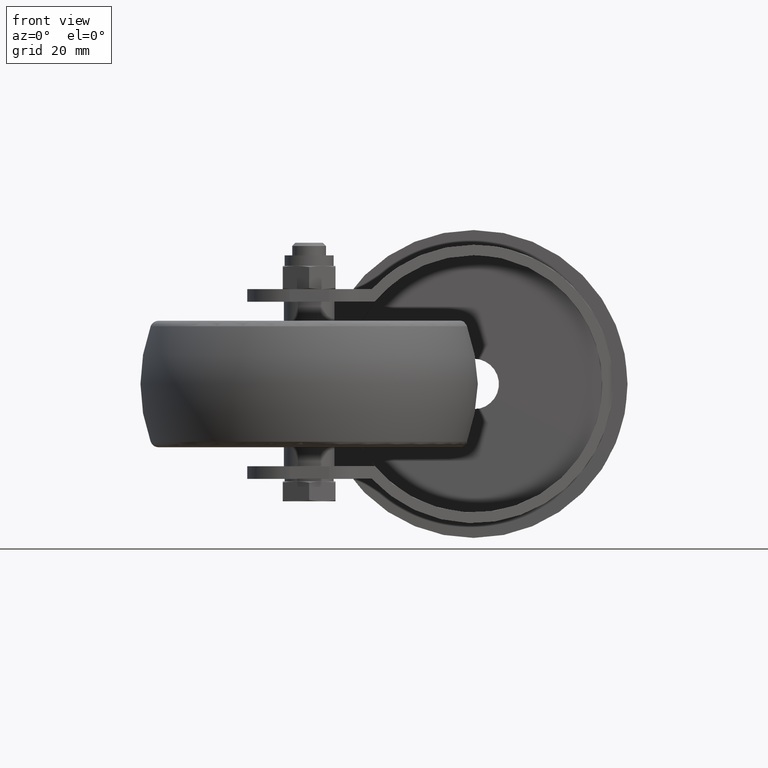
[diagram: clean part render]
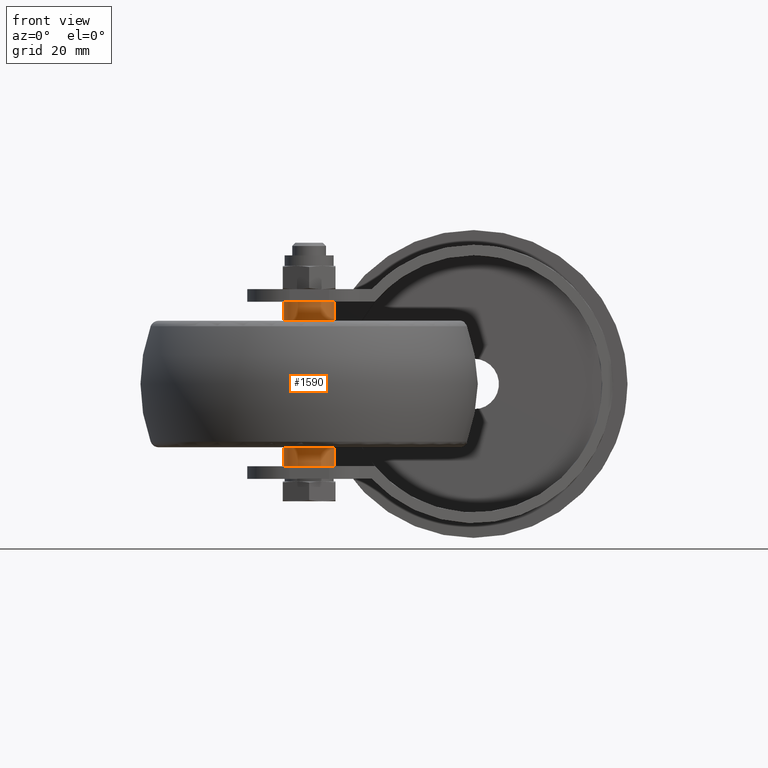
[diagram: same view with one face highlighted and labeled with its STEP entity id]
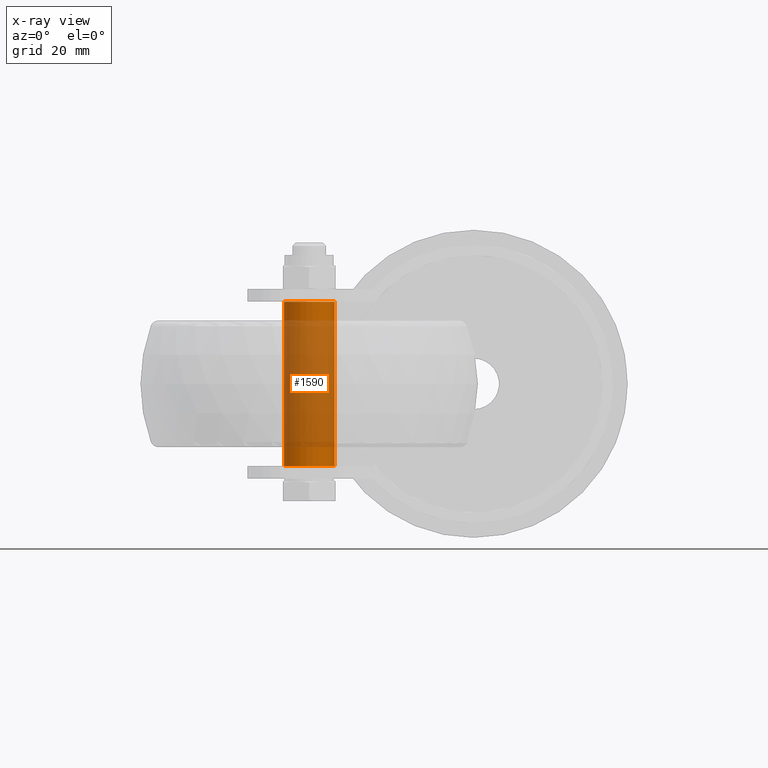
[diagram: x-ray of the same camera — body ghosted, the highlighted face saturated]
A machine part, front view. The second image highlights one B-rep face of the part: STEP entity #1590.
The next image is the same camera in x-ray: the body ghosted, the highlighted face saturated — about 77% of this face is hidden behind the body in this view.
In plain terms, the highlighted cylindrical surface (bore or boss wall) has radius 6 mm, axis along (0, 0, 1).
Its self-contained STEP definition (entity closure, byte-faithful):
#271=FACE_OUTER_BOUND('',#391,.T.);
#391=EDGE_LOOP('',(#1319,#1320,#1321,#1322));
#492=CIRCLE('',#1861,6.);
#494=CIRCLE('',#1864,6.);
#606=LINE('',#2814,#674);
#674=VECTOR('',#2263,6.);
#771=VERTEX_POINT('',#2806);
#773=VERTEX_POINT('',#2811);
#959=EDGE_CURVE('',#771,#771,#492,.T.);
#961=EDGE_CURVE('',#773,#773,#494,.T.);
#962=EDGE_CURVE('',#773,#771,#606,.T.);
#1319=ORIENTED_EDGE('',*,*,#961,.F.);
#1320=ORIENTED_EDGE('',*,*,#962,.T.);
#1321=ORIENTED_EDGE('',*,*,#959,.T.);
#1322=ORIENTED_EDGE('',*,*,#962,.F.);
#1526=CYLINDRICAL_SURFACE('',#1865,6.);
#1590=ADVANCED_FACE('',(#271),#1526,.T.);
#1861=AXIS2_PLACEMENT_3D('',#2807,#2253,#2254);
#1864=AXIS2_PLACEMENT_3D('',#2812,#2259,#2260);
#1865=AXIS2_PLACEMENT_3D('',#2813,#2261,#2262);
#2253=DIRECTION('center_axis',(1.,0.,0.));
#2254=DIRECTION('ref_axis',(0.,0.,-1.));
#2259=DIRECTION('center_axis',(1.,0.,0.));
#2260=DIRECTION('ref_axis',(0.,0.,-1.));
#2261=DIRECTION('center_axis',(1.,0.,0.));
#2262=DIRECTION('ref_axis',(0.,0.,-1.));
#2263=DIRECTION('',(-1.,0.,0.));
#2806=CARTESIAN_POINT('',(8.3,-7.34788079488412E-16,6.));
#2807=CARTESIAN_POINT('Origin',(8.3,0.,0.));
#2811=CARTESIAN_POINT('',(47.3,-7.34788079488412E-16,6.));
#2812=CARTESIAN_POINT('Origin',(47.3,0.,0.));
#2813=CARTESIAN_POINT('Origin',(47.3,0.,0.));
#2814=CARTESIAN_POINT('',(47.3,-7.34788079488412E-16,6.));